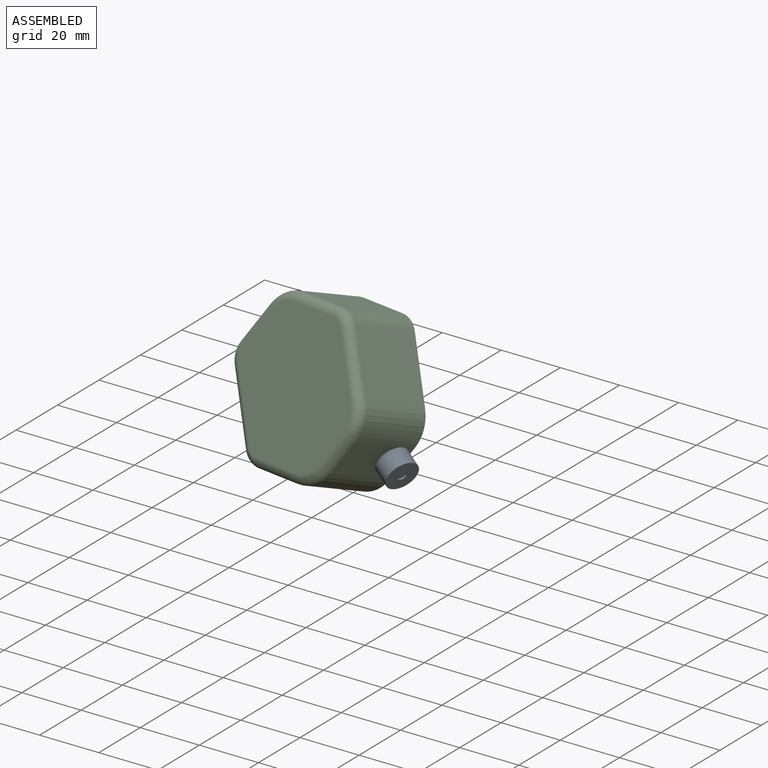
[diagram: assembled view]
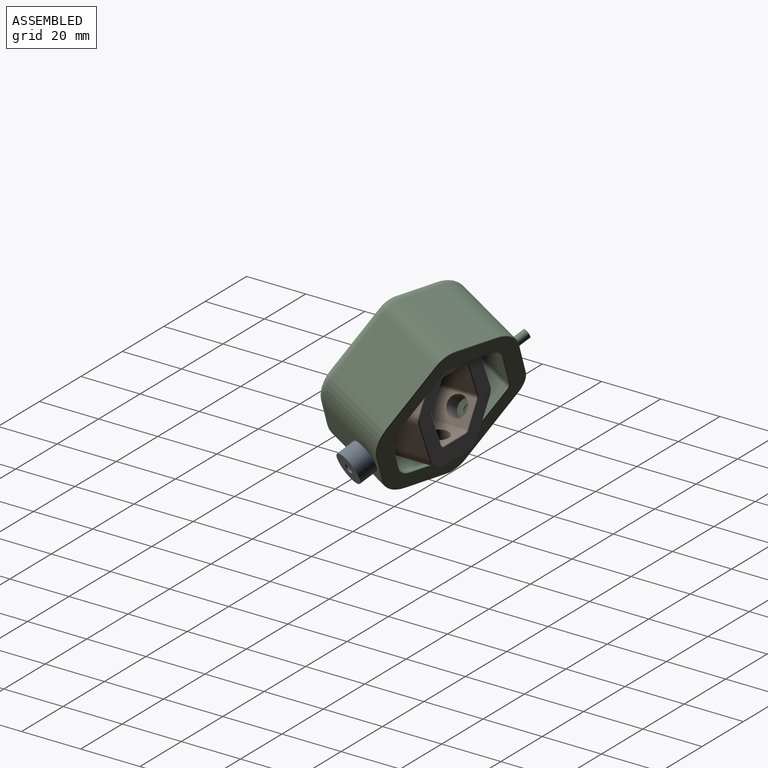
[diagram: assembled view, second angle]
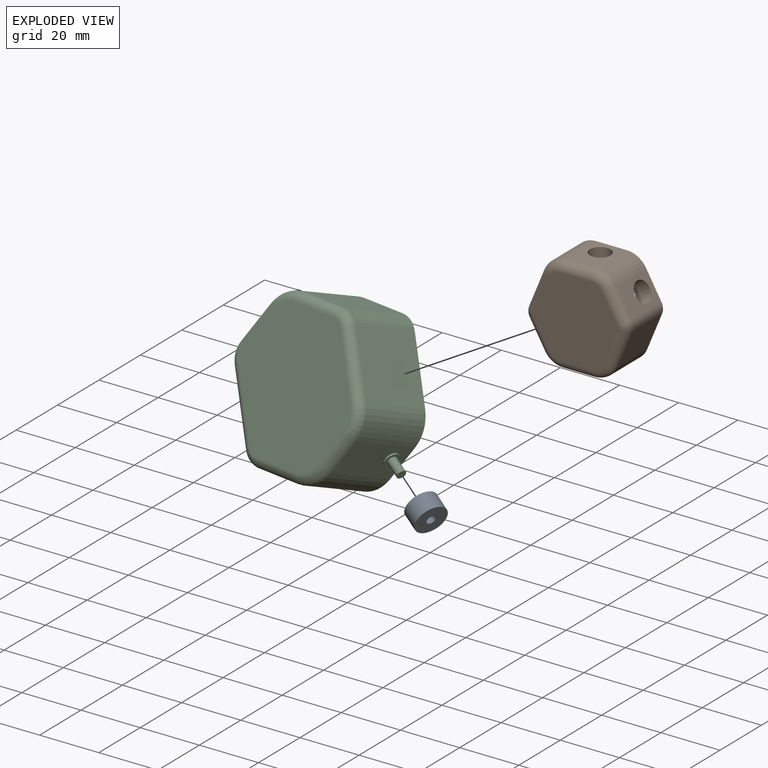
[diagram: exploded view]
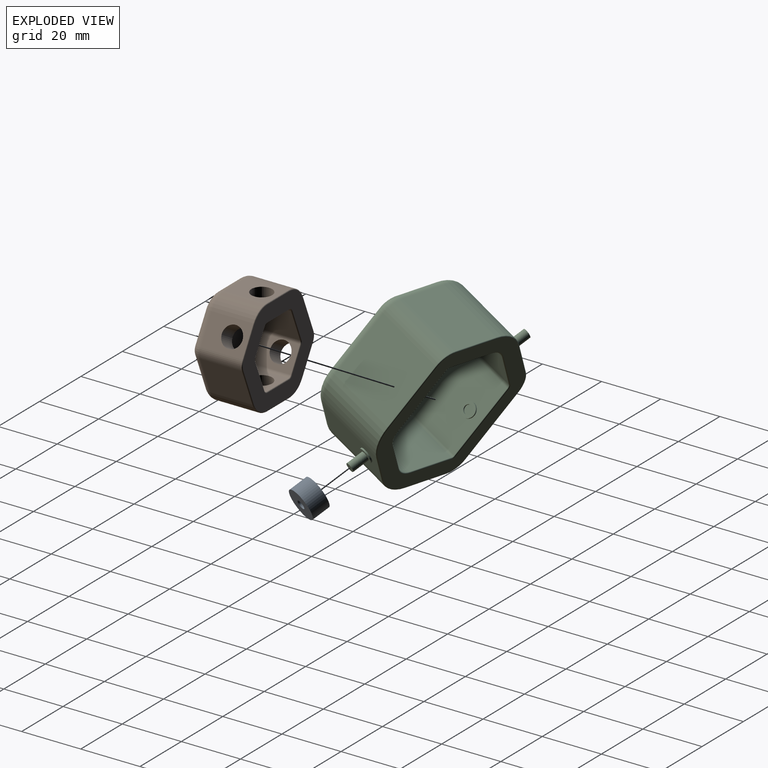
[diagram: exploded view, second angle]
ASSEMBLY  parts=3 mates=2
PART A: 4 faces, bbox 10.5x10.5x6 mm
  f0: cylinder r=5.25mm len=10.5mm, axis (0,0,1), area 197.9mm2, adj f1,f3
  f1: plane 10.5x10.5mm, normal (0,0,-1), area 79.5mm2, adj f0,f2
  f2: cylinder r=1.5mm len=6mm, axis (0,0,1), area 56.5mm2, adj f1,f3
  f3: plane 10.5x10.5mm, normal (0,0,1), area 79.5mm2, adj f0,f2
PART B: 79 faces, bbox 17.5x35.5x34.2 mm
  f0: plane 14.2x10.5mm, normal (0,0,-1), area 110.6mm2, adj f1,f23,f29,f50,f66
  f1: cylinder r=7.41mm len=14.2mm, axis (1,0,0), area 110.1mm2, adj f0,f2,f52,f64
  f2: plane 14.2x9.09mm, normal (0,0.87,-0.5), area 110.6mm2, adj f1,f3,f26,f54,f62
  f3: cylinder r=3.85mm len=14.2mm, axis (1,0,0), area 50mm2, adj f2,f4,f53,f60
  f4: plane 14.2x12.23mm, normal (0,0.92,0.38), area 187.8mm2, adj f3,f5,f51,f58
  f5: cylinder r=7.41mm len=14.2mm, axis (1,0,0), area 124.1mm2, adj f4,f6,f49,f56
  f6: plane 14.2x10.5mm, normal (0,0,1), area 110.6mm2, adj f5,f7,f28,f47,f55
  f7: cylinder r=7.41mm len=14.2mm, axis (1,0,0), area 110.1mm2, adj f6,f8,f45,f57
  f8: plane 14.2x9.09mm, normal (0,-0.87,0.5), area 110.6mm2, adj f7,f9,f27,f43,f59
  f9: cylinder r=3.85mm len=14.2mm, axis (1,0,0), area 50mm2, adj f8,f10,f44,f61
  f10: plane 14.2x12.23mm, normal (0,-0.92,-0.38), area 187.8mm2, adj f9,f23,f46,f63
  f11: cylinder r=1.41mm len=12.2mm, axis (1,0,0), area 18mm2, adj f12,f22,f37,f77
  f12: plane 12.2x10.5mm, normal (0,0,1), area 89.6mm2, adj f11,f13,f29,f39,f78
  f13: cylinder r=1.41mm len=12.2mm, axis (1,0,0), area 20.2mm2, adj f12,f14,f41,f76
  f14: plane 12.2x10.61mm, normal (0,0.92,0.38), area 140mm2, adj f13,f15,f42,f74
  f15: cylinder r=1.41mm len=12.2mm, axis (1,0,0), area 15.7mm2, adj f14,f16,f40,f72
  f16: plane 12.2x7.58mm, normal (0,0.87,-0.5), area 68.3mm2, adj f15,f17,f27,f38,f70
  f17: cylinder r=1.41mm len=12.2mm, axis (1,0,0), area 18mm2, adj f16,f18,f36,f68
  f18: plane 12.2x10.5mm, normal (0,0,-1), area 89.6mm2, adj f17,f19,f28,f34,f67
  f19: cylinder r=1.41mm len=12.2mm, axis (1,0,0), area 20.2mm2, adj f18,f20,f32,f69
  f20: plane 12.2x10.61mm, normal (0,-0.92,-0.38), area 140mm2, adj f19,f21,f31,f71
  f21: cylinder r=1.41mm len=12.2mm, axis (1,0,0), area 15.7mm2, adj f20,f22,f33,f73
  f22: plane 12.2x7.58mm, normal (0,-0.87,0.5), area 68.3mm2, adj f11,f21,f26,f35,f75
  f23: cylinder r=7.41mm len=14.2mm, axis (1,0,0), area 124.1mm2, adj f0,f10,f48,f65
  f24: plane 28.86x27mm, normal (-1,0,0), area 603.6mm2, adj f43,f44,f45,f46,f47,f48,f49,f50
  f25: plane 34.26x32.4mm, normal (1,0,0), area 484mm2, adj f55,f56,f57,f58,f59,f60,f61,f62
  f26: cylinder r=3.5mm len=9.06mm, axis (0,0.87,-0.5), area 131.9mm2, adj f2,f22
  f27: cylinder r=3.5mm len=9.06mm, axis (0,0.87,-0.5), area 131.9mm2, adj f8,f16
  f28: cylinder r=3.5mm len=7mm, axis (0,0,-1), area 131.9mm2, adj f6,f18
  f29: cylinder r=3.5mm len=7mm, axis (0,0,-1), area 131.9mm2, adj f0,f12
  f30: plane 17.93x17mm, normal (1,0,0), area 235.3mm2, adj f31,f34,f35,f38,f39,f42
  f31: cylinder r=2mm len=11.37mm, axis (0,0.38,-0.92), area 35.3mm2, adj f20,f30,f32,f33
  f32: bspline ~2.34x2mm, area 3.4mm2, adj f19,f31,f34
  f33: bspline ~2.31x2.22mm, area 2.6mm2, adj f21,f31,f35
  f34: cylinder r=2mm len=10.5mm, axis (0,1,0), area 32.1mm2, adj f18,f30,f32,f36
  f35: cylinder r=2mm len=8.58mm, axis (0,-0.5,-0.87), area 26.8mm2, adj f22,f30,f33,f37
  f36: bspline ~2.32x2mm, area 3mm2, adj f17,f34,f38
  f37: bspline ~2.32x2mm, area 3mm2, adj f11,f35,f39
  f38: cylinder r=2mm len=8.58mm, axis (0,0.5,0.87), area 26.8mm2, adj f16,f30,f36,f40
  f39: cylinder r=2mm len=10.5mm, axis (0,-1,0), area 32.1mm2, adj f12,f30,f37,f41
  f40: bspline ~2.31x2.22mm, area 2.6mm2, adj f15,f38,f42
  f41: bspline ~2.34x2mm, area 3.4mm2, adj f13,f39,f42
  f42: cylinder r=2mm len=11.37mm, axis (0,-0.38,0.92), area 35.3mm2, adj f14,f30,f40,f41
  f43: cylinder r=3mm len=10.59mm, axis (0,0.5,0.87), area 49.5mm2, adj f8,f24,f44,f45
  f44: torus R=0.85mm, axis (1,0,0), area 11.9mm2, adj f9,f24,f43,f46
  f45: torus R=4.41mm, axis (1,0,0), area 31.2mm2, adj f7,f24,f43,f47
  f46: cylinder r=3mm len=13.37mm, axis (0,-0.38,0.92), area 62.3mm2, adj f10,f24,f44,f48
  f47: cylinder r=3mm len=10.5mm, axis (0,1,0), area 49.5mm2, adj f6,f24,f45,f49
  f48: torus R=4.41mm, axis (1,0,0), area 35.1mm2, adj f23,f24,f46,f50
  f49: torus R=4.41mm, axis (1,0,0), area 35.1mm2, adj f5,f24,f47,f51
  f50: cylinder r=3mm len=10.5mm, axis (0,-1,0), area 49.5mm2, adj f0,f24,f48,f52
  f51: cylinder r=3mm len=13.37mm, axis (0,0.38,-0.92), area 62.3mm2, adj f4,f24,f49,f53
  f52: torus R=4.41mm, axis (1,0,0), area 31.2mm2, adj f1,f24,f50,f54
  f53: torus R=0.85mm, axis (1,0,0), area 11.9mm2, adj f3,f24,f51,f54
  f54: cylinder r=3mm len=10.59mm, axis (0,-0.5,-0.87), area 49.5mm2, adj f2,f24,f52,f53
  f55: cylinder r=0.3mm len=10.5mm, axis (0,-1,0), area 4.9mm2, adj f6,f25,f56,f57
  f56: torus R=7.11mm, axis (1,0,0), area 4.1mm2, adj f5,f25,f55,f58
  f57: torus R=7.11mm, axis (1,0,0), area 3.6mm2, adj f7,f25,f55,f59
  f58: cylinder r=0.3mm len=12.34mm, axis (0,-0.38,0.92), area 6.2mm2, adj f4,f25,f56,f60
  f59: cylinder r=0.3mm len=9.24mm, axis (0,-0.5,-0.87), area 4.9mm2, adj f8,f25,f57,f61
  f60: torus R=3.55mm, axis (1,0,0), area 1.6mm2, adj f3,f25,f58,f62
  f61: torus R=3.55mm, axis (1,0,0), area 1.6mm2, adj f9,f25,f59,f63
  f62: cylinder r=0.3mm len=9.24mm, axis (0,0.5,0.87), area 4.9mm2, adj f2,f25,f60,f64
  f63: cylinder r=0.3mm len=12.34mm, axis (0,0.38,-0.92), area 6.2mm2, adj f10,f25,f61,f65
  f64: torus R=7.11mm, axis (1,0,0), area 3.6mm2, adj f1,f25,f62,f66
  f65: torus R=7.11mm, axis (1,0,0), area 4.1mm2, adj f23,f25,f63,f66
  f66: cylinder r=0.3mm len=10.5mm, axis (0,1,0), area 4.9mm2, adj f0,f25,f64,f65
  f67: cylinder r=0.3mm len=10.5mm, axis (0,1,0), area 4.9mm2, adj f18,f25,f68,f69
  f68: torus R=1.71mm, axis (1,0,0), area 0.7mm2, adj f17,f25,f67,f70
  f69: torus R=1.71mm, axis (1,0,0), area 0.8mm2, adj f19,f25,f67,f71
  f70: cylinder r=0.3mm len=7.73mm, axis (0,0.5,0.87), area 4.1mm2, adj f16,f25,f68,f72
  f71: cylinder r=0.3mm len=10.72mm, axis (0,0.38,-0.92), area 5.4mm2, adj f20,f25,f69,f73
  f72: torus R=1.71mm, axis (1,0,0), area 0.7mm2, adj f15,f25,f70,f74
  f73: torus R=1.71mm, axis (1,0,0), area 0.7mm2, adj f21,f25,f71,f75
  f74: cylinder r=0.3mm len=10.72mm, axis (0,-0.38,0.92), area 5.4mm2, adj f14,f25,f72,f76
  f75: cylinder r=0.3mm len=7.73mm, axis (0,-0.5,-0.87), area 4.1mm2, adj f22,f25,f73,f77
  f76: torus R=1.71mm, axis (1,0,0), area 0.8mm2, adj f13,f25,f74,f78
  f77: torus R=1.71mm, axis (1,0,0), area 0.7mm2, adj f11,f25,f75,f78
  f78: cylinder r=0.3mm len=10.5mm, axis (0,-1,0), area 4.9mm2, adj f12,f25,f76,f77
PART C: 91 faces, bbox 26.8x56.5x53 mm
  f0: plane 21.5x19.17mm, normal (0,0.87,-0.5), area 456.2mm2, adj f1,f23,f35,f50,f82
  f1: cylinder r=0.95mm len=21.5mm, axis (1,0,0), area 21.3mm2, adj f0,f2,f52,f80
  f2: plane 21.5x15.65mm, normal (0,0,-1), area 336.5mm2, adj f1,f3,f54,f79
  f3: cylinder r=6.41mm len=21.5mm, axis (1,0,0), area 144.2mm2, adj f2,f4,f53,f81
  f4: plane 21.5x12.86mm, normal (0,-0.87,-0.5), area 319.4mm2, adj f3,f5,f51,f83
  f5: cylinder r=1.41mm len=21.5mm, axis (1,0,0), area 31.7mm2, adj f4,f6,f49,f85
  f6: plane 21.5x21.05mm, normal (0,-0.87,0.5), area 503mm2, adj f5,f7,f39,f47,f87
  f7: cylinder r=0.95mm len=21.5mm, axis (1,0,0), area 21.3mm2, adj f6,f8,f45,f89
  f8: plane 21.5x15.65mm, normal (0,0,1), area 336.5mm2, adj f7,f9,f43,f90
  f9: cylinder r=6.41mm len=21.5mm, axis (1,0,0), area 144.2mm2, adj f8,f10,f44,f88
  f10: plane 21.5x10.98mm, normal (0,0.87,0.5), area 272.6mm2, adj f9,f23,f46,f86
  f11: cylinder r=6.95mm len=23.5mm, axis (1,0,0), area 171mm2, adj f12,f22,f58,f69
  f12: plane 23.5x19.17mm, normal (0,-0.87,0.5), area 520.1mm2, adj f11,f13,f60,f71
  f13: cylinder r=11.18mm len=23.5mm, axis (1,0,0), area 275.1mm2, adj f12,f14,f62,f73
  f14: plane 23.5x10.98mm, normal (0,-0.87,-0.5), area 278.3mm2, adj f13,f15,f28,f64,f75
  f15: cylinder r=12.41mm len=23.5mm, axis (1,0,0), area 305.3mm2, adj f14,f16,f66,f77
  f16: plane 23.5x15.65mm, normal (0,0,-1), area 367.8mm2, adj f15,f17,f65,f78
  f17: cylinder r=6.95mm len=23.5mm, axis (1,0,0), area 171mm2, adj f16,f18,f63,f76
  f18: plane 23.5x21.05mm, normal (0,0.87,-0.5), area 571.3mm2, adj f17,f19,f61,f74
  f19: cylinder r=7.41mm len=23.5mm, axis (1,0,0), area 182.3mm2, adj f18,f20,f59,f72
  f20: plane 23.5x12.86mm, normal (0,0.87,0.5), area 329.4mm2, adj f19,f21,f29,f57,f70
  f21: cylinder r=12.41mm len=23.5mm, axis (1,0,0), area 305.3mm2, adj f20,f22,f55,f68
  f22: plane 23.5x15.65mm, normal (0,0,1), area 367.8mm2, adj f11,f21,f56,f67
  f23: cylinder r=5.18mm len=21.5mm, axis (1,0,0), area 116.6mm2, adj f0,f10,f48,f84
  f24: plane 52.79x50.4mm, normal (1,0,0), area 790.7mm2, adj f67,f68,f69,f70,f71,f72,f73,f74
  f25: plane 3x2.6mm, normal (0,-0.87,-0.5), area 7.1mm2, adj f26
  f26: cylinder r=1.5mm len=6.26mm, axis (0,0.87,0.5), area 51.8mm2, adj f25,f27
  f27: plane 5x4.33mm, normal (0,-0.87,-0.5), area 12.6mm2, adj f26,f28
  f28: cylinder r=2.5mm len=5mm, axis (0,0.87,0.5), area 7.9mm2, adj f14,f27
  f29: cylinder r=2.5mm len=5mm, axis (0,0.87,0.5), area 7.9mm2, adj f20,f30
  f30: plane 5x4.33mm, normal (0,0.87,0.5), area 12.6mm2, adj f29,f31
  f31: cylinder r=1.5mm len=6.26mm, axis (0,0.87,0.5), area 51.8mm2, adj f30,f32
  f32: plane 3x2.6mm, normal (0,0.87,0.5), area 7.1mm2, adj f31
  f33: plane 5x4.33mm, normal (0,0.87,-0.5), area 12.6mm2, adj f34,f35
  f34: cylinder r=1.5mm len=3mm, axis (0,-0.87,0.5), area 4.7mm2, adj f33,f36
  f35: cylinder r=2.5mm len=5mm, axis (0,-0.87,0.5), area 7.9mm2, adj f0,f33
  f36: plane 3x2.6mm, normal (0,0.87,-0.5), area 7.1mm2, adj f34
  f37: cylinder r=1.5mm len=3mm, axis (0,-0.87,0.5), area 4.7mm2, adj f38,f40
  f38: plane 5x4.33mm, normal (0,-0.87,0.5), area 12.6mm2, adj f37,f39
  f39: cylinder r=2.5mm len=5mm, axis (0,-0.87,0.5), area 7.9mm2, adj f6,f38
  f40: plane 3x2.6mm, normal (0,-0.87,0.5), area 7.1mm2, adj f37
  f41: plane 37.3x35mm, normal (1,0,0), area 957.9mm2, adj f43,f44,f46,f47,f48,f50,f51,f53
  f42: plane 47.39x45mm, normal (-1,0,0), area 1611.3mm2, adj f55,f56,f57,f58,f59,f60,f61,f62
  f43: cylinder r=2mm len=15.65mm, axis (0,-1,0), area 48.5mm2, adj f8,f41,f44,f45
  f44: torus R=4.41mm, axis (-1,0,0), area 18.7mm2, adj f9,f41,f43,f46
  f45: bspline ~2.3x2mm, area 2mm2, adj f7,f43,f47
  f46: cylinder r=2mm len=11.98mm, axis (0,-0.5,0.87), area 39.8mm2, adj f10,f41,f44,f48
  f47: cylinder r=2mm len=22.05mm, axis (0,-0.5,-0.87), area 75.3mm2, adj f6,f41,f45,f49
  f48: torus R=3.18mm, axis (-1,0,0), area 14.6mm2, adj f23,f41,f46,f50
  f49: bspline ~2.32x2.31mm, area 3mm2, adj f5,f47,f51
  f50: cylinder r=2mm len=20.17mm, axis (0,0.5,0.87), area 68.8mm2, adj f0,f41,f48,f52
  f51: cylinder r=2mm len=13.86mm, axis (0,0.5,-0.87), area 46.3mm2, adj f4,f41,f49,f53
  f52: bspline ~2.3x2mm, area 2mm2, adj f1,f50,f54
  f53: torus R=4.41mm, axis (-1,0,0), area 18.7mm2, adj f3,f41,f51,f54
  f54: cylinder r=2mm len=15.65mm, axis (0,1,0), area 48.5mm2, adj f2,f41,f52,f53
  f55: torus R=9.41mm, axis (-1,0,0), area 55.8mm2, adj f21,f42,f56,f57
  f56: cylinder r=3mm len=15.65mm, axis (0,-1,0), area 73.7mm2, adj f22,f42,f55,f58
  f57: cylinder r=3mm len=14.36mm, axis (0,-0.5,0.87), area 70mm2, adj f20,f42,f55,f59
  f58: torus R=3.95mm, axis (-1,0,0), area 28.9mm2, adj f11,f42,f56,f60
  f59: torus R=4.41mm, axis (-1,0,0), area 31.2mm2, adj f19,f42,f57,f61
  f60: cylinder r=3mm len=20.67mm, axis (0,-0.5,-0.87), area 104.3mm2, adj f12,f42,f58,f62
  f61: cylinder r=3mm len=22.55mm, axis (0,0.5,0.87), area 114.6mm2, adj f18,f42,f59,f63
  f62: torus R=8.18mm, axis (-1,0,0), area 49.8mm2, adj f13,f42,f60,f64
  f63: torus R=3.95mm, axis (-1,0,0), area 28.9mm2, adj f17,f42,f61,f65
  f64: cylinder r=3mm len=12.48mm, axis (0,0.5,-0.87), area 59.7mm2, adj f14,f42,f62,f66
  f65: cylinder r=3mm len=15.65mm, axis (0,1,0), area 73.7mm2, adj f16,f42,f63,f66
  f66: torus R=9.41mm, axis (-1,0,0), area 55.8mm2, adj f15,f42,f64,f65
  f67: cylinder r=0.3mm len=15.65mm, axis (0,-1,0), area 7.4mm2, adj f22,f24,f68,f69
  f68: torus R=12.11mm, axis (1,0,0), area 6.1mm2, adj f21,f24,f67,f70
  f69: torus R=6.65mm, axis (1,0,0), area 3.4mm2, adj f11,f24,f67,f71
  f70: cylinder r=0.3mm len=13.01mm, axis (0,-0.5,0.87), area 7mm2, adj f20,f24,f68,f72
  f71: cylinder r=0.3mm len=19.32mm, axis (0,-0.5,-0.87), area 10.4mm2, adj f12,f24,f69,f73
  f72: torus R=7.11mm, axis (1,0,0), area 3.6mm2, adj f19,f24,f70,f74
  f73: torus R=10.88mm, axis (1,0,0), area 5.5mm2, adj f13,f24,f71,f75
  f74: cylinder r=0.3mm len=21.2mm, axis (0,0.5,0.87), area 11.5mm2, adj f18,f24,f72,f76
  f75: cylinder r=0.3mm len=11.13mm, axis (0,0.5,-0.87), area 6mm2, adj f14,f24,f73,f77
  f76: torus R=6.65mm, axis (1,0,0), area 3.4mm2, adj f17,f24,f74,f78
  f77: torus R=12.11mm, axis (1,0,0), area 6.1mm2, adj f15,f24,f75,f78
  f78: cylinder r=0.3mm len=15.65mm, axis (0,1,0), area 7.4mm2, adj f16,f24,f76,f77
  f79: cylinder r=0.3mm len=15.65mm, axis (0,1,0), area 7.4mm2, adj f2,f24,f80,f81
  f80: torus R=1.25mm, axis (1,0,0), area 0.5mm2, adj f1,f24,f79,f82
  f81: torus R=6.71mm, axis (1,0,0), area 3.2mm2, adj f3,f24,f79,f83
  f82: cylinder r=0.3mm len=19.32mm, axis (0,0.5,0.87), area 10.4mm2, adj f0,f24,f80,f84
  f83: cylinder r=0.3mm len=13.01mm, axis (0,0.5,-0.87), area 7mm2, adj f4,f24,f81,f85
  f84: torus R=5.48mm, axis (1,0,0), area 2.6mm2, adj f23,f24,f82,f86
  f85: torus R=1.71mm, axis (1,0,0), area 0.7mm2, adj f5,f24,f83,f87
  f86: cylinder r=0.3mm len=11.13mm, axis (0,-0.5,0.87), area 6mm2, adj f10,f24,f84,f88
  f87: cylinder r=0.3mm len=21.2mm, axis (0,-0.5,-0.87), area 11.5mm2, adj f6,f24,f85,f89
  f88: torus R=6.71mm, axis (1,0,0), area 3.2mm2, adj f9,f24,f86,f90
  f89: torus R=1.25mm, axis (1,0,0), area 0.5mm2, adj f7,f24,f87,f90
  f90: cylinder r=0.3mm len=15.65mm, axis (0,-1,0), area 7.4mm2, adj f8,f24,f88,f89
PLACE A rot(axis=(0.87,0,0.5),155deg) t=(12.98,3.14,-6.76)mm
PLACE B rot(axis=(0,0,1),90deg) t=(0,8.9,0)mm
PLACE C rot(axis=(-0.21,0.21,0.96),79.9deg) t=(0,8.9,0)mm
MATE fastened A.f0 <-> C.f26  axis (-0.83,0.37,0.43) through (21.65,-0.7,-11.27)mm
MATE revolute C.f34 <-> B.f26  axis (0.87,0,0.5) through (-14.29,8.9,-8.25)mm
